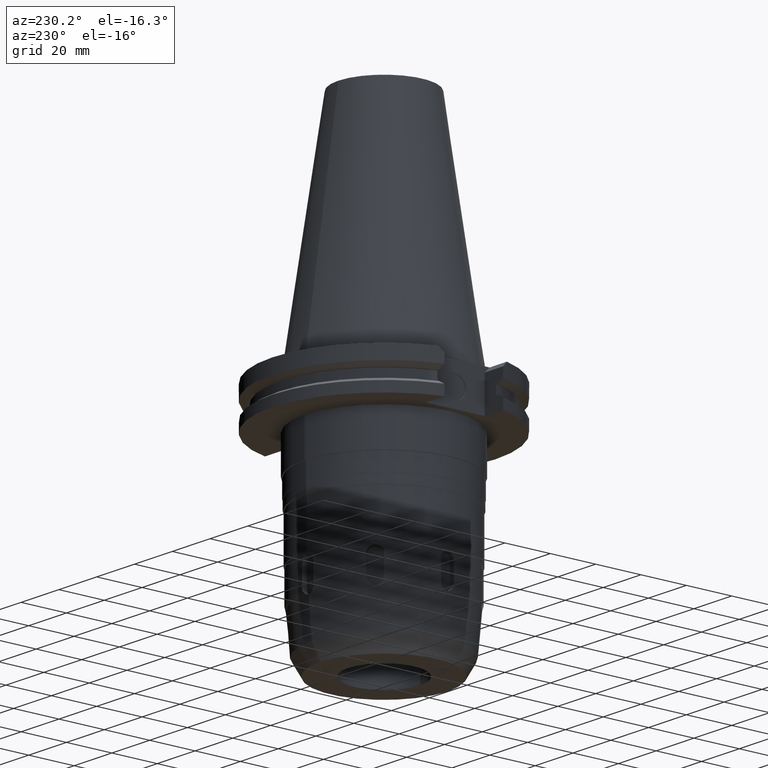
[diagram: clean part render]
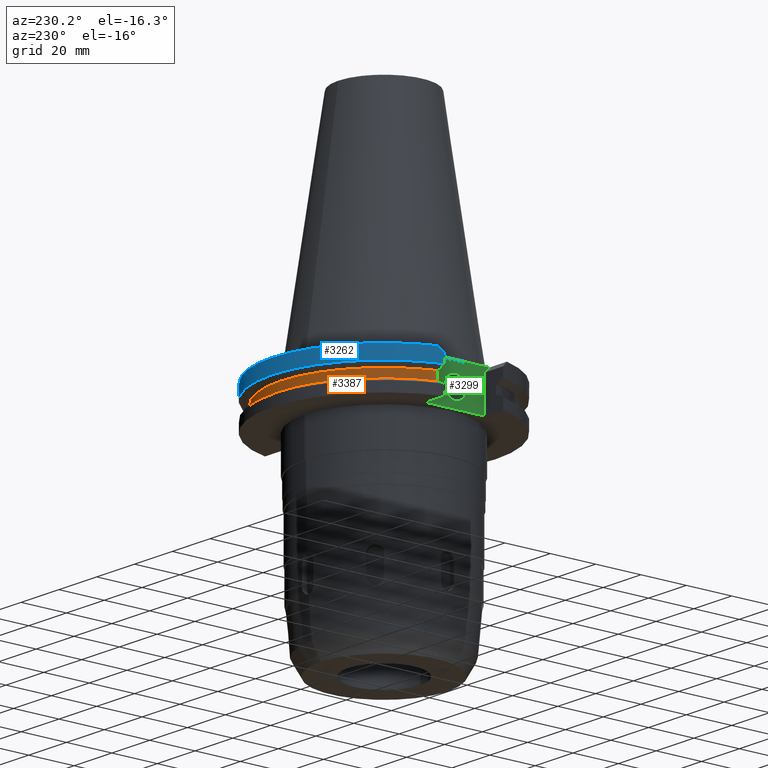
[diagram: same view with three faces highlighted in distinct colors, each labeled with its STEP entity id]
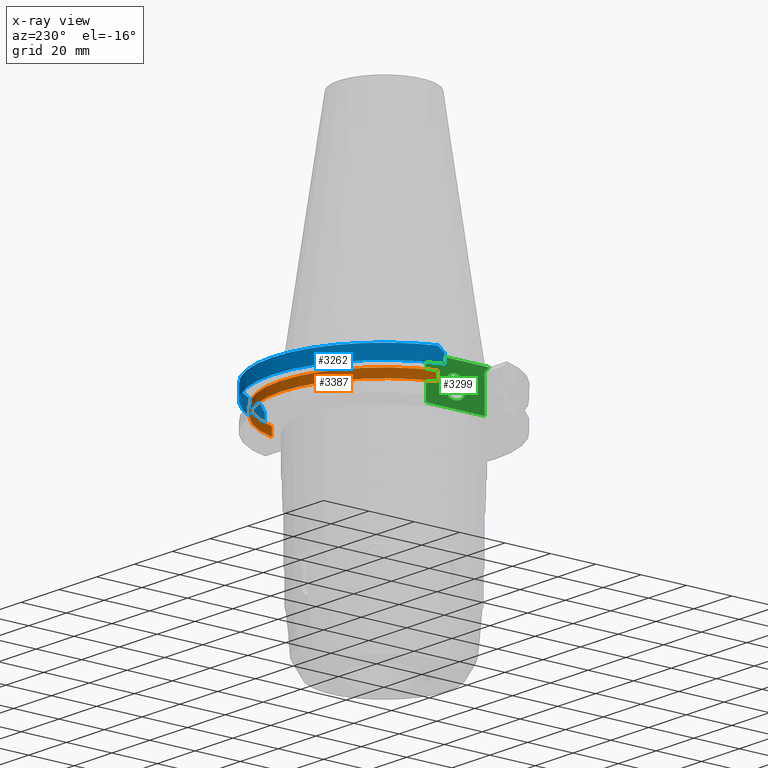
[diagram: x-ray of the same camera — body ghosted, the three highlighted faces saturated]
A machine part, auxiliary view with three faces highlighted in distinct colors.
The next image is the same camera in x-ray (body ghosted, the three faces saturated) — at least one of them is partly hidden behind the body in this view.
Their STEP definitions:

[orange] entity #3387 — the highlighted cylindrical surface (partial cylindrical patch) has radius 45.645 mm, axis along (0, 0, 1).
#433=CARTESIAN_POINT('',(0.E0,0.E0,-1.305E1));
#434=DIRECTION('',(0.E0,0.E0,1.E0));
#435=DIRECTION('',(9.588773428655E-1,2.838207908862E-1,0.E0));
#436=AXIS2_PLACEMENT_3D('',#433,#434,#435);
#441=CARTESIAN_POINT('',(0.E0,0.E0,-1.305E1));
#442=DIRECTION('',(0.E0,0.E0,1.E0));
#443=DIRECTION('',(0.E0,1.E0,0.E0));
#444=AXIS2_PLACEMENT_3D('',#441,#442,#443);
#472=DIRECTION('',(0.E0,0.E0,1.E0));
#473=VECTOR('',#472,3.84E0);
#474=CARTESIAN_POINT('',(4.376795631509E1,1.2955E1,-1.305E1));
#475=LINE('',#474,#473);
#479=DIRECTION('',(0.E0,0.E0,-1.E0));
#480=VECTOR('',#479,3.84E0);
#481=CARTESIAN_POINT('',(-4.376795631509E1,1.2955E1,-9.21E0));
#482=LINE('',#481,#480);
#509=CARTESIAN_POINT('',(0.E0,0.E0,-9.21E0));
#510=DIRECTION('',(0.E0,0.E0,-1.E0));
#511=DIRECTION('',(-9.588773428655E-1,2.838207908862E-1,0.E0));
#512=AXIS2_PLACEMENT_3D('',#509,#510,#511);
#517=CARTESIAN_POINT('',(0.E0,0.E0,-9.21E0));
#518=DIRECTION('',(0.E0,0.E0,-1.E0));
#519=DIRECTION('',(0.E0,1.E0,0.E0));
#520=AXIS2_PLACEMENT_3D('',#517,#518,#519);
#2966=CARTESIAN_POINT('',(4.376795631509E1,1.2955E1,-9.21E0));
#2967=VERTEX_POINT('',#2966);
#2968=CARTESIAN_POINT('',(4.376795631509E1,1.2955E1,-1.305E1));
#2969=VERTEX_POINT('',#2968);
#3020=CARTESIAN_POINT('',(-4.376795631509E1,1.2955E1,-1.305E1));
#3021=VERTEX_POINT('',#3020);
#3022=CARTESIAN_POINT('',(-4.376795631509E1,1.2955E1,-9.21E0));
#3023=VERTEX_POINT('',#3022);
#3032=CARTESIAN_POINT('',(2.461224688054E-14,4.5645E1,-1.305E1));
#3033=VERTEX_POINT('',#3032);
#3036=CARTESIAN_POINT('',(-2.461224688054E-14,4.5645E1,-9.21E0));
#3037=VERTEX_POINT('',#3036);
#3372=CARTESIAN_POINT('',(0.E0,0.E0,-1.1533E2));
#3373=DIRECTION('',(0.E0,0.E0,1.E0));
#3374=DIRECTION('',(0.E0,1.E0,0.E0));
#3375=AXIS2_PLACEMENT_3D('',#3372,#3373,#3374);
#3376=CYLINDRICAL_SURFACE('',#3375,4.5645E1);
#3377=ORIENTED_EDGE('',*,*,#3219,.T.);
#3379=ORIENTED_EDGE('',*,*,#3378,.F.);
#3381=ORIENTED_EDGE('',*,*,#3380,.F.);
#3382=ORIENTED_EDGE('',*,*,#3312,.T.);
#3383=ORIENTED_EDGE('',*,*,#3364,.F.);
#3384=ORIENTED_EDGE('',*,*,#3362,.F.);
#3385=EDGE_LOOP('',(#3377,#3379,#3381,#3382,#3383,#3384));
#3386=FACE_OUTER_BOUND('',#3385,.F.);
#437=CIRCLE('',#436,4.5645E1);
#445=CIRCLE('',#444,4.5645E1);
#513=CIRCLE('',#512,4.5645E1);
#521=CIRCLE('',#520,4.5645E1);
#3219=EDGE_CURVE('',#2969,#2967,#475,.T.);
#3312=EDGE_CURVE('',#3023,#3021,#482,.T.);
#3362=EDGE_CURVE('',#2969,#3033,#437,.T.);
#3364=EDGE_CURVE('',#3033,#3021,#445,.T.);
#3378=EDGE_CURVE('',#3037,#2967,#521,.T.);
#3380=EDGE_CURVE('',#3023,#3037,#513,.T.);
#3387=ADVANCED_FACE('',(#3386),#3376,.T.);

[blue] entity #3262 — the highlighted cylindrical surface (partial cylindrical patch) has radius 49.215 mm, axis along (0, 0, 1).
#138=CARTESIAN_POINT('',(0.E0,0.E0,-1.5E0));
#139=DIRECTION('',(0.E0,0.E0,-1.E0));
#140=DIRECTION('',(-9.514075356433E-1,3.079345727928E-1,0.E0));
#141=AXIS2_PLACEMENT_3D('',#138,#139,#140);
#146=CARTESIAN_POINT('',(0.E0,0.E0,-1.5E0));
#147=DIRECTION('',(0.E0,0.E0,-1.E0));
#148=DIRECTION('',(0.E0,1.E0,0.E0));
#149=AXIS2_PLACEMENT_3D('',#146,#147,#148);
#274=CARTESIAN_POINT('',(4.682352186669E1,1.5155E1,-1.500000000001E0));
#275=CARTESIAN_POINT('',(4.706001059807E1,1.442433452423E1,-2.230665475767E0));
#276=CARTESIAN_POINT('',(4.727848554383E1,1.369098349195E1,-2.964016508049E0));
#277=CARTESIAN_POINT('',(4.747930285925E1,1.2955E1,-3.700000000001E0));
#296=DIRECTION('',(2.708967305910E-13,0.E0,1.E0));
#297=VECTOR('',#296,3.908163357943E0);
#298=CARTESIAN_POINT('',(4.747930285925E1,1.2955E1,-7.608163357943E0));
#299=LINE('',#298,#297);
#303=DIRECTION('',(2.690786317280E-13,0.E0,-1.E0));
#304=VECTOR('',#303,3.908163357943E0);
#305=CARTESIAN_POINT('',(-4.747930285925E1,1.2955E1,-3.7E0));
#306=LINE('',#305,#304);
#310=CARTESIAN_POINT('',(-4.747930285925E1,1.2955E1,-3.700000000001E0));
#311=CARTESIAN_POINT('',(-4.727848554383E1,1.369098349195E1,-2.964016508049E0));
#312=CARTESIAN_POINT('',(-4.706001059807E1,1.442433452423E1,-2.230665475767E0));
#313=CARTESIAN_POINT('',(-4.682352186669E1,1.5155E1,-1.500000000001E0));
#535=CARTESIAN_POINT('',(0.E0,0.E0,-7.608163357944E0));
#536=DIRECTION('',(0.E0,0.E0,1.E0));
#537=DIRECTION('',(9.647323551610E-1,2.632327542416E-1,0.E0));
#538=AXIS2_PLACEMENT_3D('',#535,#536,#537);
#543=CARTESIAN_POINT('',(0.E0,0.E0,-7.608163357944E0));
#544=DIRECTION('',(0.E0,0.E0,1.E0));
#545=DIRECTION('',(0.E0,1.E0,0.E0));
#546=AXIS2_PLACEMENT_3D('',#543,#544,#545);
#2669=CARTESIAN_POINT('',(-4.682352186669E1,1.5155E1,-1.5E0));
#2670=VERTEX_POINT('',#2669);
#2671=CARTESIAN_POINT('',(-1.060760121903E-13,4.9215E1,-1.5E0));
#2672=CARTESIAN_POINT('',(4.682352186669E1,1.5155E1,-1.5E0));
#2673=VERTEX_POINT('',#2671);
#2674=VERTEX_POINT('',#2672);
#2961=CARTESIAN_POINT('',(4.747930285925E1,1.2955E1,-3.7E0));
#2962=VERTEX_POINT('',#2961);
#2963=CARTESIAN_POINT('',(4.747930285925E1,1.2955E1,-7.608163357943E0));
#2964=VERTEX_POINT('',#2963);
#2982=VERTEX_POINT('',#310);
#2983=CARTESIAN_POINT('',(-4.747930285925E1,1.2955E1,-7.608163357943E0));
#2984=VERTEX_POINT('',#2983);
#2985=CARTESIAN_POINT('',(0.E0,4.9215E1,-7.608163357944E0));
#2986=VERTEX_POINT('',#2985);
#3243=CARTESIAN_POINT('',(0.E0,0.E0,-1.1533E2));
#3244=DIRECTION('',(0.E0,0.E0,1.E0));
#3245=DIRECTION('',(0.E0,1.E0,0.E0));
#3246=AXIS2_PLACEMENT_3D('',#3243,#3244,#3245);
#3247=CYLINDRICAL_SURFACE('',#3246,4.9215E1);
#3248=ORIENTED_EDGE('',*,*,#3213,.T.);
#3249=ORIENTED_EDGE('',*,*,#3235,.F.);
#3250=ORIENTED_EDGE('',*,*,#3141,.F.);
#3251=ORIENTED_EDGE('',*,*,#3139,.F.);
#3253=ORIENTED_EDGE('',*,*,#3252,.F.);
#3255=ORIENTED_EDGE('',*,*,#3254,.T.);
#3257=ORIENTED_EDGE('',*,*,#3256,.F.);
#3259=ORIENTED_EDGE('',*,*,#3258,.F.);
#3260=EDGE_LOOP('',(#3248,#3249,#3250,#3251,#3253,#3255,#3257,#3259));
#3261=FACE_OUTER_BOUND('',#3260,.F.);
#142=CIRCLE('',#141,4.9215E1);
#150=CIRCLE('',#149,4.9215E1);
#278=B_SPLINE_CURVE_WITH_KNOTS('',3,(#274,#275,#276,#277),.UNSPECIFIED.,.F.,.F.,
(4,4),(0.E0,1.E0),.UNSPECIFIED.);
#314=B_SPLINE_CURVE_WITH_KNOTS('',3,(#310,#311,#312,#313),.UNSPECIFIED.,.F.,.F.,
(4,4),(0.E0,1.E0),.UNSPECIFIED.);
#539=CIRCLE('',#538,4.9215E1);
#547=CIRCLE('',#546,4.9215E1);
#3139=EDGE_CURVE('',#2670,#2673,#142,.T.);
#3141=EDGE_CURVE('',#2673,#2674,#150,.T.);
#3213=EDGE_CURVE('',#2964,#2962,#299,.T.);
#3235=EDGE_CURVE('',#2674,#2962,#278,.T.);
#3252=EDGE_CURVE('',#2982,#2670,#314,.T.);
#3254=EDGE_CURVE('',#2982,#2984,#306,.T.);
#3256=EDGE_CURVE('',#2986,#2984,#547,.T.);
#3258=EDGE_CURVE('',#2964,#2986,#539,.T.);
#3262=ADVANCED_FACE('',(#3261),#3247,.T.);

[green] entity #3299 — the highlighted planar face has unit normal (1, 0, 0).
#124=DIRECTION('',(0.E0,1.E0,0.E0));
#125=VECTOR('',#124,3.031E1);
#126=CARTESIAN_POINT('',(-3.768E1,-1.5155E1,-1.5E0));
#127=LINE('',#126,#125);
#318=DIRECTION('',(0.E0,1.E0,0.E0));
#319=VECTOR('',#318,2.591E1);
#320=CARTESIAN_POINT('',(-3.768E1,-1.2955E1,-1.905E1));
#321=LINE('',#320,#319);
#325=DIRECTION('',(0.E0,7.071067811865E-1,7.071067811865E-1));
#326=VECTOR('',#325,3.111269837221E0);
#327=CARTESIAN_POINT('',(-3.768E1,1.2955E1,-3.7E0));
#328=LINE('',#327,#326);
#332=DIRECTION('',(0.E0,7.071067811865E-1,-7.071067811865E-1));
#333=VECTOR('',#332,3.111269837221E0);
#334=CARTESIAN_POINT('',(-3.768E1,-1.5155E1,-1.5E0));
#335=LINE('',#334,#333);
#339=CARTESIAN_POINT('',(-3.768E1,0.E0,-1.118E1));
#340=DIRECTION('',(-1.E0,0.E0,0.E0));
#341=DIRECTION('',(0.E0,0.E0,1.E0));
#342=AXIS2_PLACEMENT_3D('',#339,#340,#341);
#347=CARTESIAN_POINT('',(-3.768E1,0.E0,-1.118E1));
#348=DIRECTION('',(-1.E0,0.E0,0.E0));
#349=DIRECTION('',(0.E0,0.E0,-1.E0));
#350=AXIS2_PLACEMENT_3D('',#347,#348,#349);
#376=DIRECTION('',(0.E0,0.E0,-1.E0));
#377=VECTOR('',#376,1.535E1);
#378=CARTESIAN_POINT('',(-3.768E1,1.2955E1,-3.7E0));
#379=LINE('',#378,#377);
#640=DIRECTION('',(0.E0,0.E0,1.E0));
#641=VECTOR('',#640,1.535E1);
#642=CARTESIAN_POINT('',(-3.768E1,-1.2955E1,-1.905E1));
#643=LINE('',#642,#641);
#2665=CARTESIAN_POINT('',(-3.768E1,-1.5155E1,-1.5E0));
#2666=VERTEX_POINT('',#2665);
#2667=CARTESIAN_POINT('',(-3.768E1,1.5155E1,-1.5E0));
#2668=VERTEX_POINT('',#2667);
#2689=CARTESIAN_POINT('',(-3.768E1,1.2955E1,-1.905E1));
#2690=VERTEX_POINT('',#2689);
#2691=CARTESIAN_POINT('',(-3.768E1,-1.2955E1,-1.905E1));
#2692=VERTEX_POINT('',#2691);
#3004=CARTESIAN_POINT('',(-3.768E1,-1.2955E1,-3.7E0));
#3005=VERTEX_POINT('',#3004);
#3013=CARTESIAN_POINT('',(-3.768E1,1.2955E1,-3.7E0));
#3014=VERTEX_POINT('',#3013);
#3015=CARTESIAN_POINT('',(-3.768E1,0.E0,-6.4175E0));
#3016=CARTESIAN_POINT('',(-3.768E1,0.E0,-1.59425E1));
#3017=VERTEX_POINT('',#3015);
#3018=VERTEX_POINT('',#3016);
#3277=CARTESIAN_POINT('',(-3.768E1,0.E0,0.E0));
#3278=DIRECTION('',(1.E0,0.E0,0.E0));
#3279=DIRECTION('',(0.E0,-1.E0,0.E0));
#3280=AXIS2_PLACEMENT_3D('',#3277,#3278,#3279);
#3281=PLANE('',#3280);
#3282=ORIENTED_EDGE('',*,*,#3185,.T.);
#3284=ORIENTED_EDGE('',*,*,#3283,.F.);
#3285=ORIENTED_EDGE('',*,*,#3270,.T.);
#3286=ORIENTED_EDGE('',*,*,#3135,.F.);
#3288=ORIENTED_EDGE('',*,*,#3287,.T.);
#3290=ORIENTED_EDGE('',*,*,#3289,.F.);
#3291=EDGE_LOOP('',(#3282,#3284,#3285,#3286,#3288,#3290));
#3292=FACE_OUTER_BOUND('',#3291,.F.);
#3294=ORIENTED_EDGE('',*,*,#3293,.T.);
#3296=ORIENTED_EDGE('',*,*,#3295,.T.);
#3297=EDGE_LOOP('',(#3294,#3296));
#3298=FACE_BOUND('',#3297,.F.);
#343=CIRCLE('',#342,4.7625E0);
#351=CIRCLE('',#350,4.7625E0);
#3135=EDGE_CURVE('',#2666,#2668,#127,.T.);
#3185=EDGE_CURVE('',#2692,#2690,#321,.T.);
#3270=EDGE_CURVE('',#3014,#2668,#328,.T.);
#3283=EDGE_CURVE('',#3014,#2690,#379,.T.);
#3287=EDGE_CURVE('',#2666,#3005,#335,.T.);
#3289=EDGE_CURVE('',#2692,#3005,#643,.T.);
#3293=EDGE_CURVE('',#3017,#3018,#343,.T.);
#3295=EDGE_CURVE('',#3018,#3017,#351,.T.);
#3299=ADVANCED_FACE('',(#3292,#3298),#3281,.F.);